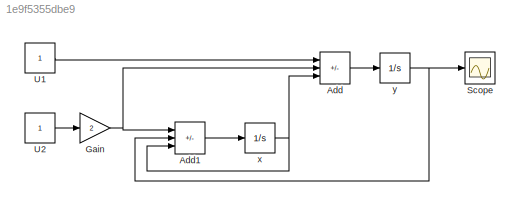
MODEL slx_1e9f5355dbe9
KIND model
CONFIG AbsTol = auto
CONFIG EnableMultiTasking = off
CONFIG FixedStep = auto
CONFIG MaxStep = auto
CONFIG MinStep = auto
CONFIG RelTol = 1e-3
CONFIG SampleTimeConstraint = Unconstrained
CONFIG SolverName = VariableStepAuto
CONFIG StartTime = 0.0
CONFIG StopTime = 10.0
BLOCK [Sum] Add
  IconShape = rectangular
  Inputs = +-+
BLOCK [Sum] Add1
  IconShape = rectangular
  Inputs = ++-
BLOCK [Gain] Gain
  Gain = 2
BLOCK [Scope] Scope
  Floating = off
  NumInputPorts = 1
  ScopeSpecificationString = Simulink.scopes.TimeScopeBlockCfg('CurrentConfiguration', extmgr.ConfigurationSet(extmgr.Configuration('Core','General UI',true),extmgr.Configuration('Core','Source UI',true),extmgr.Configuration('Sources','WiredSimulink',true),extmgr.Configuration('Visuals','Time Domain',true,'SerializedDisplays',{struct('MinYLimReal','-16.961','MaxYLimReal','149.15242','YLabelReal','','MinYLimMag','0.00000','Max...<+1327ch>
BLOCK [Constant] U1
BLOCK [Constant] U2
BLOCK [Integrator] x
BLOCK [Integrator] y
LINE Add1:1 -> x:1
LINE Add:1 -> y:1
NET Gain:1 -> Add1:1, Add:2
LINE U1:1 -> Add:1
LINE U2:1 -> Gain:1
NET x:1 -> Add1:3, Add:3
NET y:1 -> Add1:2, Scope:1
note: NET lines group one-source signal fan-out (src -> all destinations, sorted); 1:1 wires keep LINE
